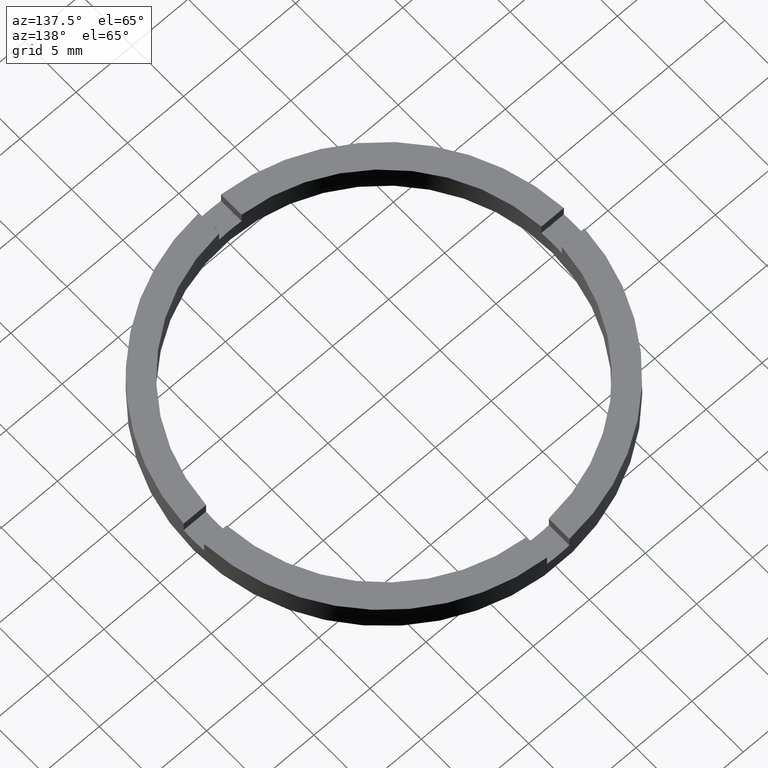
[diagram: clean part render]
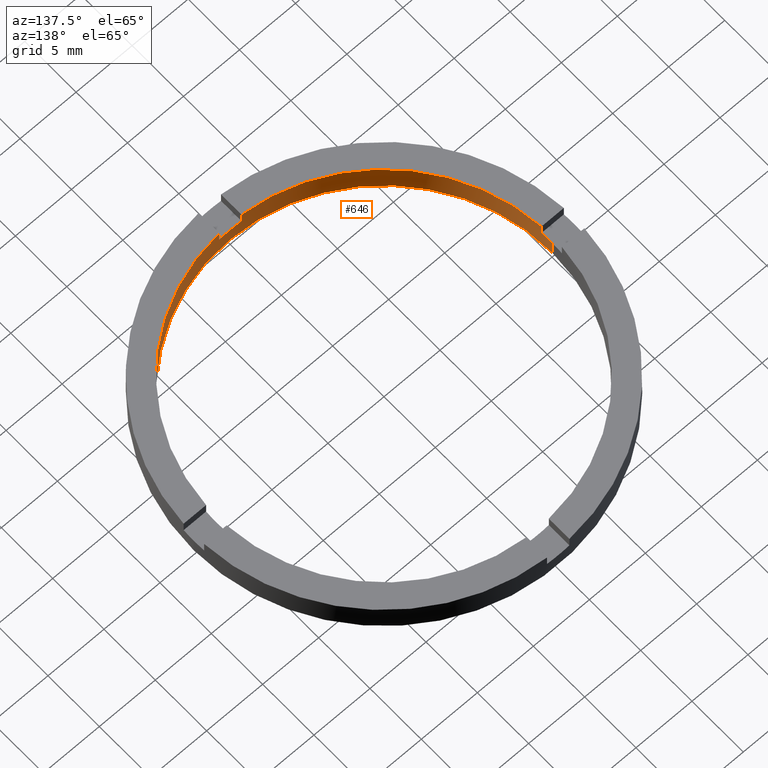
[diagram: same view with one face highlighted and labeled with its STEP entity id]
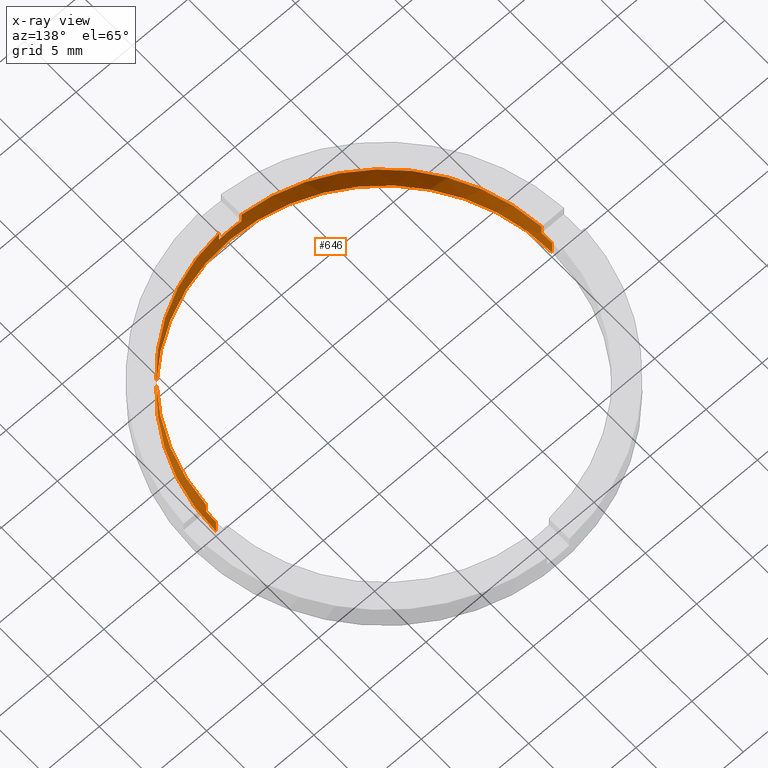
[diagram: x-ray of the same camera — body ghosted, the highlighted face saturated]
A machine part, auxiliary view. The second image highlights one B-rep face of the part: STEP entity #646.
The next image is the same camera in x-ray: the body ghosted, the highlighted face saturated — about 0% of this face is hidden behind the body in this view.
In plain terms, the highlighted cylindrical surface (partial cylindrical patch) has radius 15 mm, axis along (-0, -0, -1).
Its self-contained STEP definition (entity closure, byte-faithful):
#26 = EDGE_CURVE ( 'NONE', #611, #609, #571, .T. ) ;
#35 = DIRECTION ( 'NONE',  ( -0.000000000000000000, -0.000000000000000000, -1.000000000000000000 ) ) ;
#43 = VECTOR ( 'NONE', #323, 1000.000000000000000 ) ;
#61 = DIRECTION ( 'NONE',  ( 0.000000000000000000, 0.000000000000000000, 1.000000000000000000 ) ) ;
#64 = CARTESIAN_POINT ( 'NONE',  ( -15.00000000000000000, 0.000000000000000000, 0.000000000000000000 ) ) ;
#65 = CARTESIAN_POINT ( 'NONE',  ( 0.000000000000000000, 0.000000000000000000, 2.500000000000000000 ) ) ;
#67 = DIRECTION ( 'NONE',  ( 1.000000000000000000, 0.000000000000000000, 0.000000000000000000 ) ) ;
#76 = EDGE_CURVE ( 'NONE', #362, #347, #303, .T. ) ;
#82 = CARTESIAN_POINT ( 'NONE',  ( 14.96662954709575466, -1.000000000000158984, 2.500000000000000000 ) ) ;
#91 = ORIENTED_EDGE ( 'NONE', *, *, #76, .T. ) ;
#99 = AXIS2_PLACEMENT_3D ( 'NONE', #268, #388, #704 ) ;
#100 = ORIENTED_EDGE ( 'NONE', *, *, #647, .F. ) ;
#125 = CARTESIAN_POINT ( 'NONE',  ( -15.00000000000000000, 0.000000000000000000, 1.500000000000000000 ) ) ;
#132 = DIRECTION ( 'NONE',  ( -0.000000000000000000, 0.000000000000000000, 1.000000000000000000 ) ) ;
#135 = CARTESIAN_POINT ( 'NONE',  ( -1.000000000000162759, -14.96662954709575466, 2.500000000000000000 ) ) ;
#144 = EDGE_CURVE ( 'NONE', #611, #699, #534, .T. ) ;
#154 = CYLINDRICAL_SURFACE ( 'NONE', #753, 15.00000000000000000 ) ;
#160 = LINE ( 'NONE', #251, #678 ) ;
#161 = CIRCLE ( 'NONE', #593, 15.00000000000000000 ) ;
#162 = VERTEX_POINT ( 'NONE', #585 ) ;
#167 = ORIENTED_EDGE ( 'NONE', *, *, #598, .T. ) ;
#177 = ORIENTED_EDGE ( 'NONE', *, *, #217, .F. ) ;
#182 = ORIENTED_EDGE ( 'NONE', *, *, #144, .T. ) ;
#197 = ORIENTED_EDGE ( 'NONE', *, *, #768, .T. ) ;
#205 = AXIS2_PLACEMENT_3D ( 'NONE', #555, #669, #368 ) ;
#217 = EDGE_CURVE ( 'NONE', #162, #636, #284, .T. ) ;
#246 = DIRECTION ( 'NONE',  ( 1.000000000000000000, 0.000000000000000000, 0.000000000000000000 ) ) ;
#251 = CARTESIAN_POINT ( 'NONE',  ( 0.9999999999998373523, -14.96662954709577775, 2.500000000000000000 ) ) ;
#261 = DIRECTION ( 'NONE',  ( -0.000000000000000000, -0.000000000000000000, -1.000000000000000000 ) ) ;
#268 = CARTESIAN_POINT ( 'NONE',  ( 0.000000000000000000, 0.000000000000000000, 0.000000000000000000 ) ) ;
#278 = LINE ( 'NONE', #82, #281 ) ;
#281 = VECTOR ( 'NONE', #764, 1000.000000000000000 ) ;
#284 = LINE ( 'NONE', #781, #553 ) ;
#303 = LINE ( 'NONE', #762, #552 ) ;
#308 = VECTOR ( 'NONE', #261, 1000.000000000000000 ) ;
#315 = DIRECTION ( 'NONE',  ( 0.000000000000000000, 0.000000000000000000, 1.000000000000000000 ) ) ;
#317 = CARTESIAN_POINT ( 'NONE',  ( 0.9999999999998373523, -14.96662954709577775, 2.500000000000000000 ) ) ;
#322 = EDGE_CURVE ( 'NONE', #715, #699, #564, .T. ) ;
#323 = DIRECTION ( 'NONE',  ( -0.000000000000000000, -0.000000000000000000, -1.000000000000000000 ) ) ;
#325 = CARTESIAN_POINT ( 'NONE',  ( 14.96662954709575466, -1.000000000000158984, 2.500000000000000000 ) ) ;
#328 = CARTESIAN_POINT ( 'NONE',  ( -15.00000000000000000, 0.000000000000000000, 2.500000000000000000 ) ) ;
#337 = EDGE_LOOP ( 'NONE', ( #197, #91, #703, #719, #182, #474, #344, #177, #167, #100, #623, #610 ) ) ;
#338 = DIRECTION ( 'NONE',  ( 0.000000000000000000, 0.000000000000000000, 1.000000000000000000 ) ) ;
#343 = CARTESIAN_POINT ( 'NONE',  ( -14.96662954709576354, -1.000000000000023315, 1.500000000000000000 ) ) ;
#344 = ORIENTED_EDGE ( 'NONE', *, *, #716, .T. ) ;
#345 = CARTESIAN_POINT ( 'NONE',  ( 15.00000000000000000, 1.836970198721029589E-15, 1.500000000000000000 ) ) ;
#347 = VERTEX_POINT ( 'NONE', #460 ) ;
#355 = EDGE_CURVE ( 'NONE', #449, #481, #549, .T. ) ;
#356 = CARTESIAN_POINT ( 'NONE',  ( 0.000000000000000000, 0.000000000000000000, 1.500000000000000000 ) ) ;
#362 = VERTEX_POINT ( 'NONE', #345 ) ;
#364 = AXIS2_PLACEMENT_3D ( 'NONE', #722, #132, #67 ) ;
#368 = DIRECTION ( 'NONE',  ( 1.000000000000000000, 0.000000000000000000, 0.000000000000000000 ) ) ;
#371 = CARTESIAN_POINT ( 'NONE',  ( 14.96662954709575466, -1.000000000000158984, 1.500000000000000000 ) ) ;
#373 = DIRECTION ( 'NONE',  ( 1.000000000000000000, 0.000000000000000000, 0.000000000000000000 ) ) ;
#376 = VERTEX_POINT ( 'NONE', #417 ) ;
#388 = DIRECTION ( 'NONE',  ( 0.000000000000000000, 0.000000000000000000, 1.000000000000000000 ) ) ;
#404 = FACE_OUTER_BOUND ( 'NONE', #337, .T. ) ;
#413 = CIRCLE ( 'NONE', #364, 15.00000000000000000 ) ;
#417 = CARTESIAN_POINT ( 'NONE',  ( 0.9999999999998373523, -14.96662954709577775, 1.500000000000000000 ) ) ;
#420 = CIRCLE ( 'NONE', #205, 15.00000000000000000 ) ;
#437 = EDGE_CURVE ( 'NONE', #444, #481, #278, .T. ) ;
#444 = VERTEX_POINT ( 'NONE', #371 ) ;
#449 = VERTEX_POINT ( 'NONE', #317 ) ;
#460 = CARTESIAN_POINT ( 'NONE',  ( 15.00000000000000000, 1.836970198721029589E-15, 0.000000000000000000 ) ) ;
#474 = ORIENTED_EDGE ( 'NONE', *, *, #322, .F. ) ;
#481 = VERTEX_POINT ( 'NONE', #325 ) ;
#485 = DIRECTION ( 'NONE',  ( -1.000000000000000000, 0.000000000000000000, 0.000000000000000000 ) ) ;
#505 = CARTESIAN_POINT ( 'NONE',  ( -14.96662954709576354, -1.000000000000023315, 2.500000000000000000 ) ) ;
#508 = EDGE_CURVE ( 'NONE', #609, #347, #691, .T. ) ;
#512 = CARTESIAN_POINT ( 'NONE',  ( 0.000000000000000000, 0.000000000000000000, 1.500000000000000000 ) ) ;
#515 = AXIS2_PLACEMENT_3D ( 'NONE', #356, #315, #373 ) ;
#534 = CIRCLE ( 'NONE', #515, 15.00000000000000000 ) ;
#549 = CIRCLE ( 'NONE', #782, 15.00000000000000000 ) ;
#552 = VECTOR ( 'NONE', #35, 1000.000000000000000 ) ;
#553 = VECTOR ( 'NONE', #61, 1000.000000000000000 ) ;
#555 = CARTESIAN_POINT ( 'NONE',  ( 0.000000000000000000, 0.000000000000000000, 2.500000000000000000 ) ) ;
#563 = CARTESIAN_POINT ( 'NONE',  ( 0.000000000000000000, 0.000000000000000000, 2.500000000000000000 ) ) ;
#564 = LINE ( 'NONE', #586, #43 ) ;
#568 = DIRECTION ( 'NONE',  ( 0.000000000000000000, 0.000000000000000000, 1.000000000000000000 ) ) ;
#571 = LINE ( 'NONE', #328, #308 ) ;
#585 = CARTESIAN_POINT ( 'NONE',  ( -1.000000000000162759, -14.96662954709575466, 1.500000000000000000 ) ) ;
#586 = CARTESIAN_POINT ( 'NONE',  ( -14.96662954709576354, -1.000000000000023315, 2.500000000000000000 ) ) ;
#593 = AXIS2_PLACEMENT_3D ( 'NONE', #512, #568, #615 ) ;
#598 = EDGE_CURVE ( 'NONE', #162, #376, #413, .T. ) ;
#609 = VERTEX_POINT ( 'NONE', #64 ) ;
#610 = ORIENTED_EDGE ( 'NONE', *, *, #437, .F. ) ;
#611 = VERTEX_POINT ( 'NONE', #125 ) ;
#615 = DIRECTION ( 'NONE',  ( 1.000000000000000000, 0.000000000000000000, 0.000000000000000000 ) ) ;
#623 = ORIENTED_EDGE ( 'NONE', *, *, #355, .T. ) ;
#636 = VERTEX_POINT ( 'NONE', #135 ) ;
#646 = ADVANCED_FACE ( 'NONE', ( #404 ), #154, .F. ) ;
#647 = EDGE_CURVE ( 'NONE', #449, #376, #160, .T. ) ;
#652 = DIRECTION ( 'NONE',  ( -0.000000000000000000, -0.000000000000000000, -1.000000000000000000 ) ) ;
#669 = DIRECTION ( 'NONE',  ( 0.000000000000000000, 0.000000000000000000, 1.000000000000000000 ) ) ;
#678 = VECTOR ( 'NONE', #728, 1000.000000000000000 ) ;
#691 = CIRCLE ( 'NONE', #99, 15.00000000000000000 ) ;
#699 = VERTEX_POINT ( 'NONE', #343 ) ;
#703 = ORIENTED_EDGE ( 'NONE', *, *, #508, .F. ) ;
#704 = DIRECTION ( 'NONE',  ( 1.000000000000000000, 0.000000000000000000, 0.000000000000000000 ) ) ;
#715 = VERTEX_POINT ( 'NONE', #505 ) ;
#716 = EDGE_CURVE ( 'NONE', #715, #636, #420, .T. ) ;
#719 = ORIENTED_EDGE ( 'NONE', *, *, #26, .F. ) ;
#722 = CARTESIAN_POINT ( 'NONE',  ( 0.000000000000000000, 0.000000000000000000, 1.500000000000000000 ) ) ;
#728 = DIRECTION ( 'NONE',  ( -0.000000000000000000, -0.000000000000000000, -1.000000000000000000 ) ) ;
#753 = AXIS2_PLACEMENT_3D ( 'NONE', #563, #652, #485 ) ;
#762 = CARTESIAN_POINT ( 'NONE',  ( 15.00000000000000000, 1.836970198721029589E-15, 2.500000000000000000 ) ) ;
#764 = DIRECTION ( 'NONE',  ( 0.000000000000000000, 0.000000000000000000, 1.000000000000000000 ) ) ;
#768 = EDGE_CURVE ( 'NONE', #444, #362, #161, .T. ) ;
#781 = CARTESIAN_POINT ( 'NONE',  ( -1.000000000000162759, -14.96662954709575466, 2.500000000000000000 ) ) ;
#782 = AXIS2_PLACEMENT_3D ( 'NONE', #65, #338, #246 ) ;